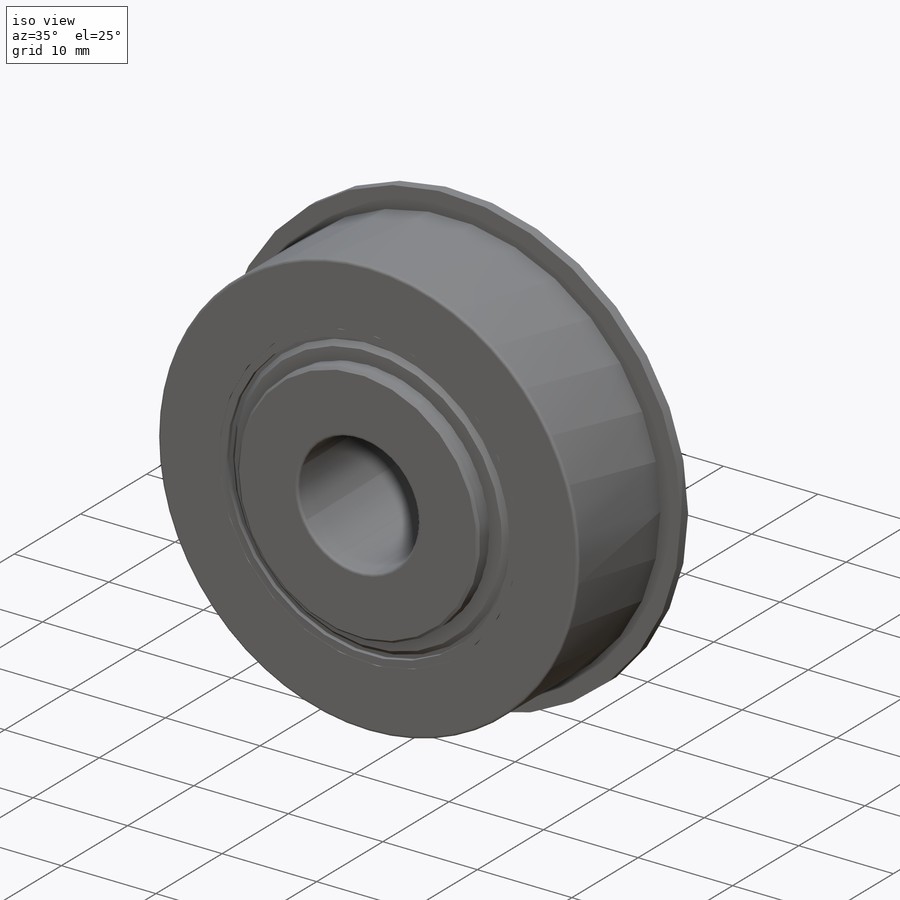
[diagram: iso view]
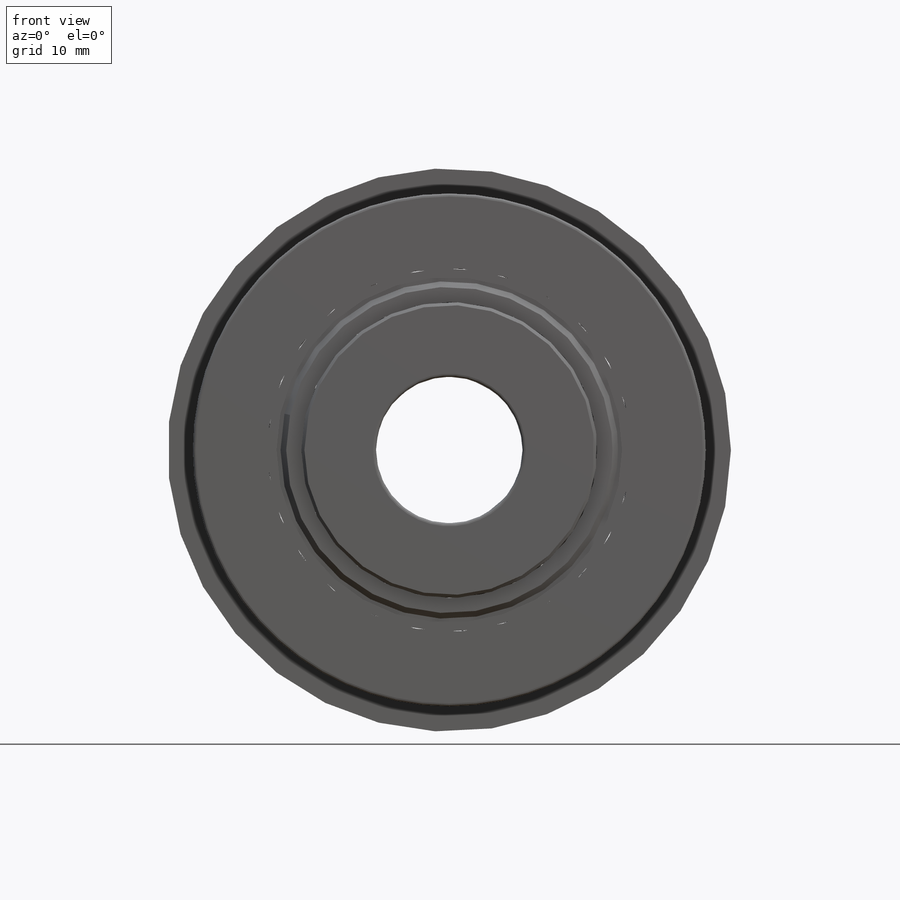
[diagram: front view]
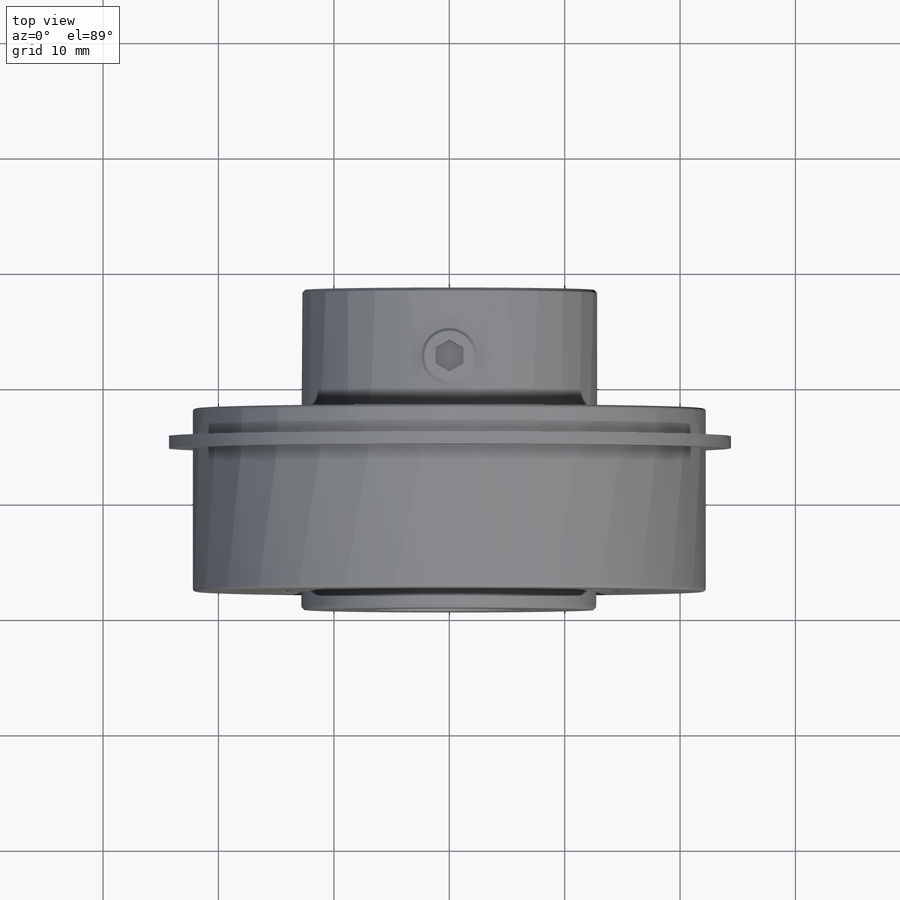
[diagram: top view]
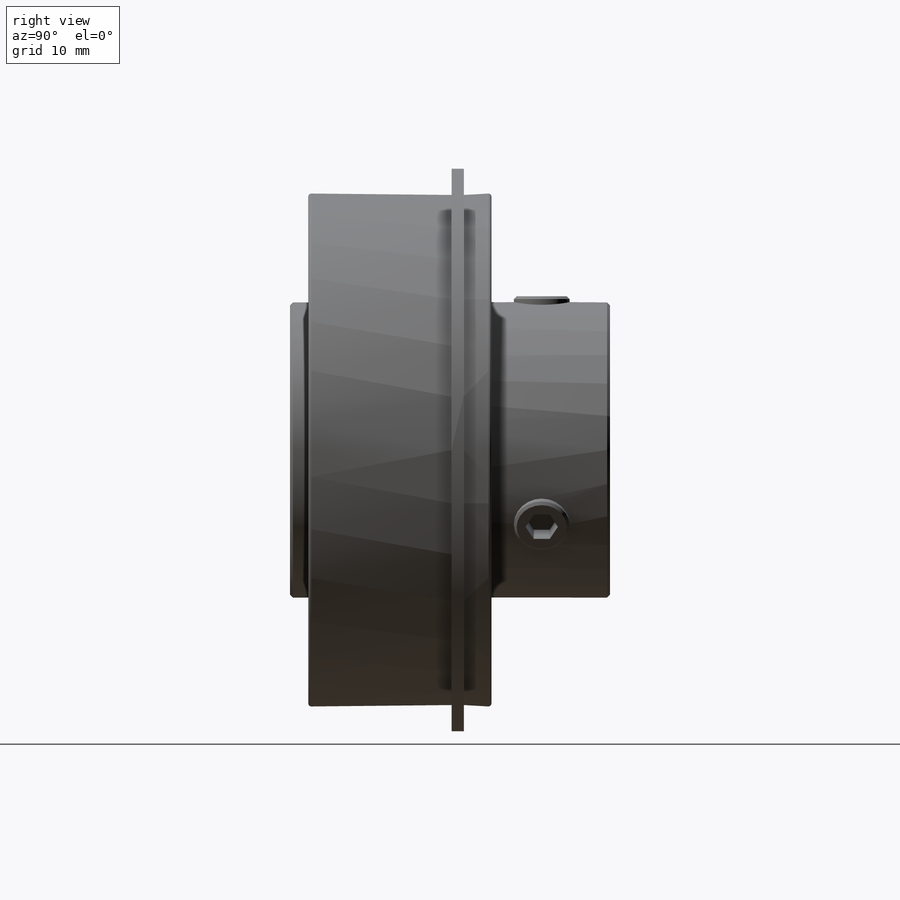
[diagram: right view]
SOLIDWORKS PART (.sldprt)
format: sldprt  version: not decoded by parser v0  size: 480,256 bytes
history: native  units: mm
features: sketch x7, revolve x5, chamfer x2, pattern_circular x2, fillet x2, material x1, cut_revolve x1, cut_extrude x1, delete_body x1 (+14 scaffold rows collapsed)
feature tree (36):
  scaffold x14  (default folders/planes/origin — collapsed)
  material  "Material <not specified>"
  sketch  "Sketch1"  dims[c1.Width=15.875mm c1.OD=44.45mm c1.Shaft Dia=12.7mm c1.F=25.6286mm c1.C=~13.096875mm c1.A=~89.99982mm c1.D1=~6.634911mm c1.H=1.0668mm c1.J=9.525mm c1.E=~15.478125mm c1.D2=~0.674688mm c1.D3=6.4643mm c1.P=48.8188mm c2.D2=~0.64643mm c2.K=~2.38125mm c2.A=1.5875mm c2.B=15.875mm c2.D1=9.525mm c2.overall=27.7368mm c2.G=3.4544mm]
  revolve  "Revolve1"  Angle=360deg
  sketch  "Sketch3"
  revolve  "Revolve2"  Angle=360deg
  sketch  "Sketch4"
  revolve  "Revolve3"  Angle=360deg
  sketch  "Sketch5"  dims[c1.D1=~1.603615mm c2.D1=45.0deg c2.D2=0.0254mm]
  revolve  "Revolve4"  Angle=360deg
  sketch  "Sketch7"  dims[Screw Dia=4.826mm K=3.175mm J=4.7625mm M=5.9182mm]
  cut_revolve  "Cut-Revolve2"  Angle=360deg
  sketch  "Sketch8"  dims[D1=~6.341469mm D2=~0.630831mm D3=0.508mm]
  revolve  "Revolve5"  Angle=360deg
  sketch  "Sketch9"  dims[D1=2.413mm]
  cut_extrude  "Cut-Extrude1"  Depth=1.585367mm
  chamfer  "Chamfer1"  Distance=0.2413mm Angle=45deg
  pattern_circular  "CirPattern1"  Count=2 Angle=120deg
  pattern_circular  "CirPattern2"  Count=2 Angle=120deg
  chamfer  "Chamfer2"  Distance=0.256286mm Angle=45deg
  fillet  "Fillet1"  Radius=0.256286mm
  fillet  "Fillet2"  Radius=0.256286mm
  delete_body  "Body-Delete1"
decode coverage: 18 of 21 modeling features carry decoded parameters
note: ~ marks probable driven/reference dimensions
note: suppression state not decoded; provenance and decode notes live in map.json
